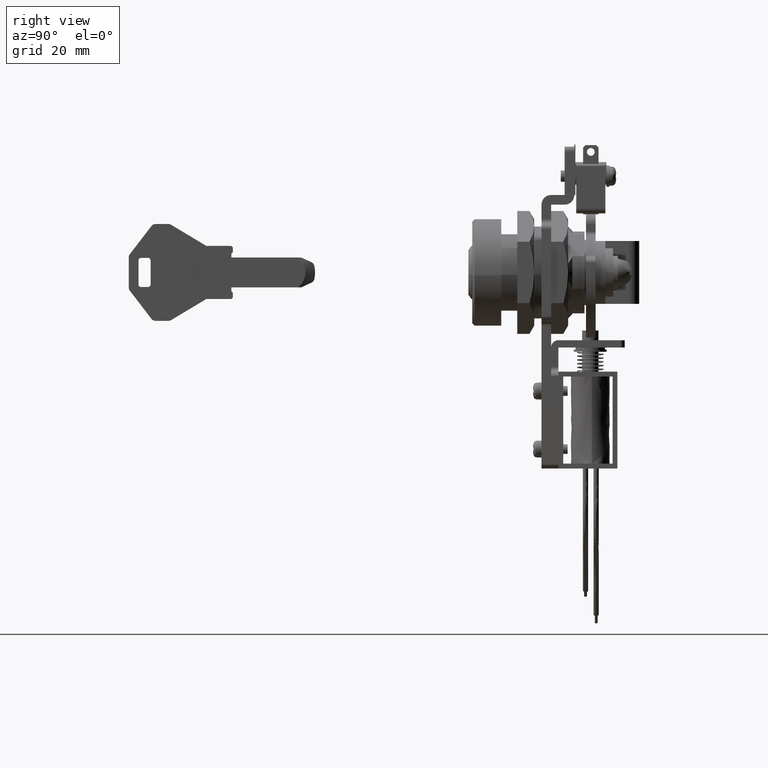
[diagram: clean part render]
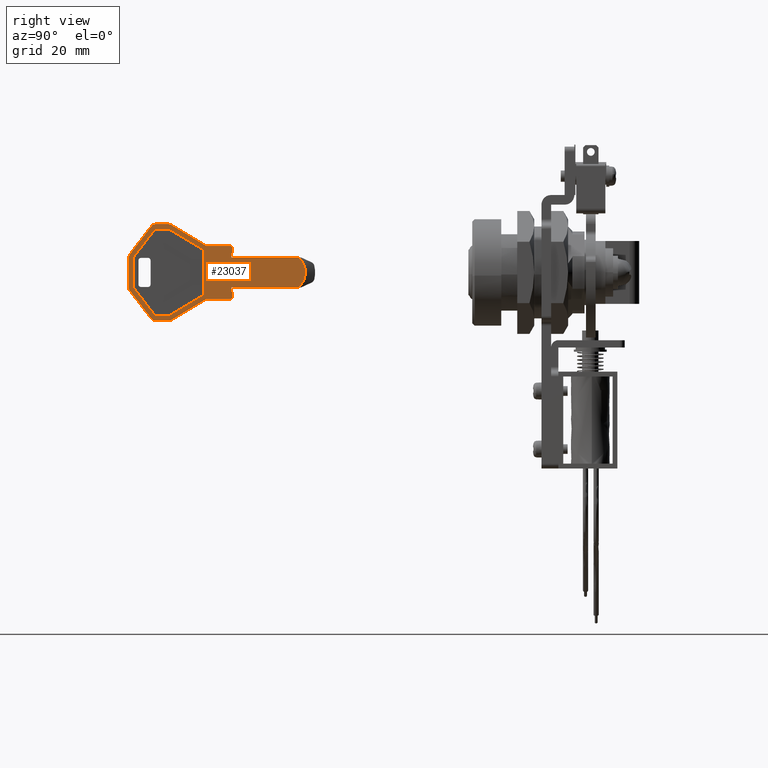
[diagram: same view with one face highlighted and labeled with its STEP entity id]
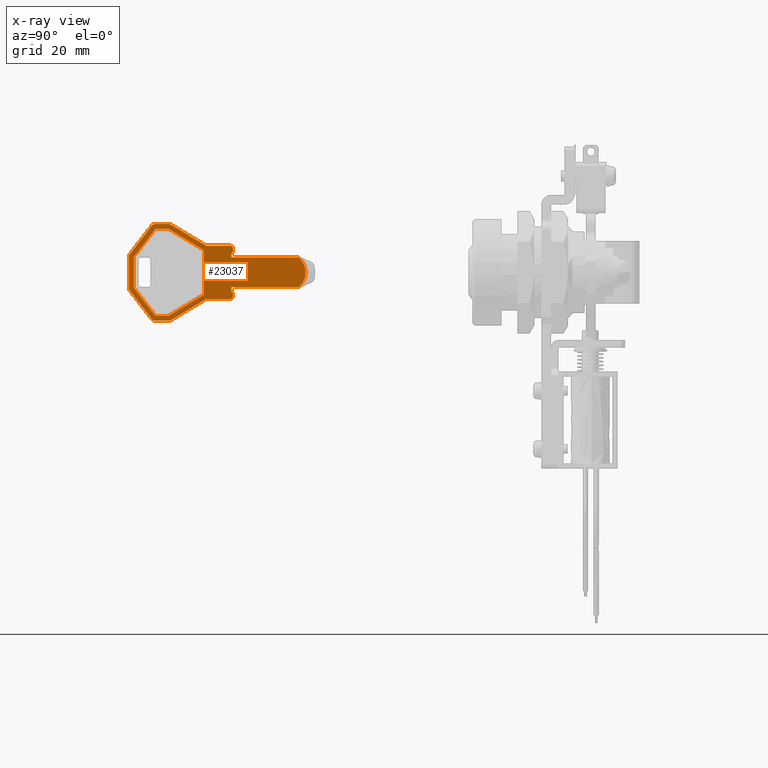
[diagram: x-ray of the same camera — body ghosted, the highlighted face saturated]
A machine part, right view. The second image highlights one B-rep face of the part: STEP entity #23037.
The next image is the same camera in x-ray: the body ghosted, the highlighted face saturated — about 0% of this face is hidden behind the body in this view.
In plain terms, the highlighted face is a freeform B-spline surface patch.
Its self-contained STEP definition (entity closure, byte-faithful):
#21359=CARTESIAN_POINT('',(0.999999999999997,-41.907556421450749,-3.075000000000000));
#21360=VERTEX_POINT('',#21359);
#21361=CARTESIAN_POINT('',(0.999999999999997,-41.907556421450799,3.075000000000000));
#21362=VERTEX_POINT('',#21361);
#21363=CARTESIAN_POINT('',(0.999999999999997,-41.907556421450749,-3.075000000000000));
#21364=CARTESIAN_POINT('',(0.999999999999997,-41.640658157276270,-2.853089562597710));
#21365=CARTESIAN_POINT('',(0.999999999999999,-41.165223107696420,-2.339171550362361));
#21366=CARTESIAN_POINT('',(0.999999999999997,-40.743219284877789,-1.541147408812884));
#21367=CARTESIAN_POINT('',(0.999999999999995,-40.509662142770281,-0.731397208334105));
#21368=CARTESIAN_POINT('',(1.0,-40.439259139995343,0.000336381630140));
#21369=CARTESIAN_POINT('',(0.999999999999997,-40.525786088645567,0.839590551397764));
#21370=CARTESIAN_POINT('',(0.999999999999997,-40.749007772622640,1.540610687106450));
#21371=CARTESIAN_POINT('',(1.000000000000002,-41.182548915155877,2.347068188391224));
#21372=CARTESIAN_POINT('',(0.999999999999992,-41.584355864452967,2.806447511191420));
#21373=CARTESIAN_POINT('',(0.999999999999997,-41.907556421450799,3.075000000000000));
#21374=B_SPLINE_CURVE_WITH_KNOTS('',3,(#21363,#21364,#21365,#21366,#21367,#21368,#21369,#21370,#21371,#21372,#21373),.UNSPECIFIED.,.F.,.U.,(4,1,1,1,1,1,1,1,4),(0.000000161446563,1.041288765809636,2.082622196117910,2.685480498539137,3.562331540361753,4.274821057769501,5.206540346006333,5.754606725633593,7.015129651751256),.UNSPECIFIED.);
#21375=EDGE_CURVE('',#21360,#21362,#21374,.T.);
#21772=CARTESIAN_POINT('',(0.999999999999995,-75.965675337365596,-3.159388051358890));
#21773=VERTEX_POINT('',#21772);
#21774=CARTESIAN_POINT('',(0.999999999999995,-75.965675337365496,3.160388051047220));
#21775=VERTEX_POINT('',#21774);
#21776=CARTESIAN_POINT('',(0.999999999999995,-75.965675337365596,-3.159388051358890));
#21777=CARTESIAN_POINT('',(0.999999999999995,-75.965675337365496,3.160388051047220));
#21778=QUASI_UNIFORM_CURVE('',1,(#21776,#21777),.UNSPECIFIED.,.F.,.U.);
#21779=EDGE_CURVE('',#21773,#21775,#21778,.T.);
#21800=CARTESIAN_POINT('',(0.999999999999996,-71.472804597849205,-9.000000000155888));
#21801=VERTEX_POINT('',#21800);
#21802=CARTESIAN_POINT('',(0.999999999999996,-71.472804597849205,-9.000000000155888));
#21803=CARTESIAN_POINT('',(0.999999999999995,-75.965675337365596,-3.159388051358890));
#21804=QUASI_UNIFORM_CURVE('',1,(#21802,#21803),.UNSPECIFIED.,.F.,.U.);
#21805=EDGE_CURVE('',#21801,#21773,#21804,.T.);
#21822=CARTESIAN_POINT('',(0.999999999999996,-68.743492720541099,-9.000000000155779));
#21823=VERTEX_POINT('',#21822);
#21824=CARTESIAN_POINT('',(0.999999999999996,-68.743492720541099,-9.000000000155779));
#21825=CARTESIAN_POINT('',(0.999999999999996,-71.472804597849205,-9.000000000155888));
#21826=QUASI_UNIFORM_CURVE('',1,(#21824,#21825),.UNSPECIFIED.,.F.,.U.);
#21827=EDGE_CURVE('',#21823,#21801,#21826,.T.);
#21844=CARTESIAN_POINT('',(0.999999999999996,-61.480232891192202,-4.642484154640069));
#21845=VERTEX_POINT('',#21844);
#21846=CARTESIAN_POINT('',(0.999999999999996,-61.480232891192202,-4.642484154640069));
#21847=CARTESIAN_POINT('',(0.999999999999996,-68.743492720541099,-9.000000000155779));
#21848=QUASI_UNIFORM_CURVE('',1,(#21846,#21847),.UNSPECIFIED.,.F.,.U.);
#21849=EDGE_CURVE('',#21845,#21823,#21848,.T.);
#21866=CARTESIAN_POINT('',(0.999999999999996,-61.480214499387003,4.642533119582111));
#21867=VERTEX_POINT('',#21866);
#21868=CARTESIAN_POINT('',(0.999999999999996,-61.480214499387003,4.642533119582111));
#21869=CARTESIAN_POINT('',(0.999999999999996,-61.480232891192202,-4.642484154640069));
#21870=QUASI_UNIFORM_CURVE('',1,(#21868,#21869),.UNSPECIFIED.,.F.,.U.);
#21871=EDGE_CURVE('',#21867,#21845,#21870,.T.);
#21888=CARTESIAN_POINT('',(0.999999999999996,-68.741826068433213,8.999999999844111));
#21889=VERTEX_POINT('',#21888);
#21890=CARTESIAN_POINT('',(0.999999999999996,-68.741826068433213,8.999999999844111));
#21891=CARTESIAN_POINT('',(0.999999999999996,-61.480214499387003,4.642533119582111));
#21892=QUASI_UNIFORM_CURVE('',1,(#21890,#21891),.UNSPECIFIED.,.F.,.U.);
#21893=EDGE_CURVE('',#21889,#21867,#21892,.T.);
#21910=CARTESIAN_POINT('',(0.999999999999996,-71.473573844424592,8.999999999844219));
#21911=VERTEX_POINT('',#21910);
#21912=CARTESIAN_POINT('',(0.999999999999996,-71.473573844424592,8.999999999844219));
#21913=CARTESIAN_POINT('',(0.999999999999996,-68.741826068433213,8.999999999844111));
#21914=QUASI_UNIFORM_CURVE('',1,(#21912,#21913),.UNSPECIFIED.,.F.,.U.);
#21915=EDGE_CURVE('',#21911,#21889,#21914,.T.);
#21932=CARTESIAN_POINT('',(0.999999999999995,-75.965675337365496,3.160388051047220));
#21933=CARTESIAN_POINT('',(0.999999999999996,-71.473573844424592,8.999999999844219));
#21934=QUASI_UNIFORM_CURVE('',1,(#21932,#21933),.UNSPECIFIED.,.F.,.U.);
#21935=EDGE_CURVE('',#21775,#21911,#21934,.T.);
#22204=CARTESIAN_POINT('',(0.999999999999997,-55.765754029142499,3.875000000000115));
#22205=VERTEX_POINT('',#22204);
#22206=CARTESIAN_POINT('',(0.999999999999997,-55.765754029142499,3.075000000000000));
#22207=VERTEX_POINT('',#22206);
#22208=CARTESIAN_POINT('',(0.999999999999997,-55.765754029142499,3.875000000000115));
#22209=CARTESIAN_POINT('',(0.999999999999997,-55.765754029142499,3.075000000000000));
#22210=QUASI_UNIFORM_CURVE('',1,(#22208,#22209),.UNSPECIFIED.,.F.,.U.);
#22211=EDGE_CURVE('',#22205,#22207,#22210,.T.);
#22232=CARTESIAN_POINT('',(0.999999999999997,-55.465754029142602,4.175000000000000));
#22233=VERTEX_POINT('',#22232);
#22234=CARTESIAN_POINT('',(0.999999999999997,-55.465754029142602,4.175000000000000));
#22235=CARTESIAN_POINT('',(0.999999999999997,-55.765754029142499,3.875000000000115));
#22236=QUASI_UNIFORM_CURVE('',1,(#22234,#22235),.UNSPECIFIED.,.F.,.U.);
#22237=EDGE_CURVE('',#22233,#22205,#22236,.T.);
#22254=CARTESIAN_POINT('',(0.999999999999997,-55.465754029142602,5.0));
#22255=VERTEX_POINT('',#22254);
#22256=CARTESIAN_POINT('',(0.999999999999997,-55.465754029142602,5.0));
#22257=CARTESIAN_POINT('',(0.999999999999997,-55.465754029142602,4.175000000000000));
#22258=QUASI_UNIFORM_CURVE('',1,(#22256,#22257),.UNSPECIFIED.,.F.,.U.);
#22259=EDGE_CURVE('',#22255,#22233,#22258,.T.);
#22285=CARTESIAN_POINT('',(0.999999999999997,-55.965754029142602,5.500000000000000));
#22286=VERTEX_POINT('',#22285);
#22287=CARTESIAN_POINT('',(0.999999999999997,-55.465754029142602,5.0));
#22288=CARTESIAN_POINT('',(0.999999999999997,-55.465754029142595,5.500000000000001));
#22289=CARTESIAN_POINT('',(0.999999999999997,-55.965754029142602,5.500000000000000));
#22297=(BOUNDED_CURVE()B_SPLINE_CURVE(2,(#22287,#22288,#22289),.UNSPECIFIED.,.F.,.U.)CURVE()GEOMETRIC_REPRESENTATION_ITEM()QUASI_UNIFORM_CURVE()RATIONAL_B_SPLINE_CURVE((1.0,0.707106781186548,1.0))REPRESENTATION_ITEM(''));
#22298=EDGE_CURVE('',#22255,#22286,#22297,.T.);
#22315=CARTESIAN_POINT('',(0.999999999999996,-60.965754029142701,5.500000000000000));
#22316=VERTEX_POINT('',#22315);
#22317=CARTESIAN_POINT('',(0.999999999999996,-60.965754029142701,5.500000000000000));
#22318=CARTESIAN_POINT('',(0.999999999999997,-55.965754029142602,5.500000000000000));
#22319=QUASI_UNIFORM_CURVE('',1,(#22317,#22318),.UNSPECIFIED.,.F.,.U.);
#22320=EDGE_CURVE('',#22316,#22286,#22319,.T.);
#22337=CARTESIAN_POINT('',(0.999999999999996,-68.228242266711987,9.857492921510731));
#22338=VERTEX_POINT('',#22337);
#22339=CARTESIAN_POINT('',(0.999999999999996,-68.228242266711987,9.857492921510731));
#22340=CARTESIAN_POINT('',(0.999999999999996,-60.965754029142701,5.500000000000000));
#22341=QUASI_UNIFORM_CURVE('',1,(#22339,#22340),.UNSPECIFIED.,.F.,.U.);
#22342=EDGE_CURVE('',#22338,#22316,#22341,.T.);
#22368=CARTESIAN_POINT('',(0.999999999999996,-68.742738029142600,10.0));
#22369=VERTEX_POINT('',#22368);
#22370=CARTESIAN_POINT('',(0.999999999999996,-68.228242266712002,9.857492921510703));
#22371=CARTESIAN_POINT('',(0.999999999999996,-68.465754059797433,9.999999999999998));
#22372=CARTESIAN_POINT('',(0.999999999999996,-68.742738029142600,9.999999999999998));
#22380=(BOUNDED_CURVE()B_SPLINE_CURVE(2,(#22370,#22371,#22372),.UNSPECIFIED.,.F.,.U.)CURVE()GEOMETRIC_REPRESENTATION_ITEM()QUASI_UNIFORM_CURVE()RATIONAL_B_SPLINE_CURVE((1.0,0.963714927120750,1.0))REPRESENTATION_ITEM(''));
#22381=EDGE_CURVE('',#22338,#22369,#22380,.T.);
#22398=CARTESIAN_POINT('',(0.999999999999996,-71.473352454768985,10.0));
#22399=VERTEX_POINT('',#22398);
#22400=CARTESIAN_POINT('',(0.999999999999996,-71.473352454768985,10.0));
#22401=CARTESIAN_POINT('',(0.999999999999996,-68.742738029142600,10.0));
#22402=QUASI_UNIFORM_CURVE('',1,(#22400,#22401),.UNSPECIFIED.,.F.,.U.);
#22403=EDGE_CURVE('',#22399,#22369,#22402,.T.);
#22429=CARTESIAN_POINT('',(0.999999999999996,-72.265976428737503,9.609710780526640));
#22430=VERTEX_POINT('',#22429);
#22431=CARTESIAN_POINT('',(0.999999999999996,-71.473352454768985,9.999999999999998));
#22432=CARTESIAN_POINT('',(0.999999999999996,-71.965753936797455,9.999999999999998));
#22433=CARTESIAN_POINT('',(0.999999999999996,-72.265976428737488,9.609710780526628));
#22441=(BOUNDED_CURVE()B_SPLINE_CURVE(2,(#22431,#22432,#22433),.UNSPECIFIED.,.F.,.U.)CURVE()GEOMETRIC_REPRESENTATION_ITEM()QUASI_UNIFORM_CURVE()RATIONAL_B_SPLINE_CURVE((1.0,0.897137330771223,1.0))REPRESENTATION_ITEM(''));
#22442=EDGE_CURVE('',#22399,#22430,#22441,.T.);
#22459=CARTESIAN_POINT('',(0.999999999999995,-76.758378018553898,3.769588760450915));
#22460=VERTEX_POINT('',#22459);
#22461=CARTESIAN_POINT('',(0.999999999999995,-76.758378018553898,3.769588760450915));
#22462=CARTESIAN_POINT('',(0.999999999999996,-72.265976428737503,9.609710780526640));
#22463=QUASI_UNIFORM_CURVE('',1,(#22461,#22462),.UNSPECIFIED.,.F.,.U.);
#22464=EDGE_CURVE('',#22460,#22430,#22463,.T.);
#22490=CARTESIAN_POINT('',(0.999999999999995,-76.965754029142602,3.159878000000000));
#22491=VERTEX_POINT('',#22490);
#22492=CARTESIAN_POINT('',(0.999999999999995,-76.758378018553941,3.769588760450942));
#22493=CARTESIAN_POINT('',(0.999999999999995,-76.965754029142602,3.499999946405036));
#22494=CARTESIAN_POINT('',(0.999999999999995,-76.965754029142602,3.159878000000000));
#22502=(BOUNDED_CURVE()B_SPLINE_CURVE(2,(#22492,#22493,#22494),.UNSPECIFIED.,.F.,.U.)CURVE()GEOMETRIC_REPRESENTATION_ITEM()QUASI_UNIFORM_CURVE()RATIONAL_B_SPLINE_CURVE((1.0,0.946737553235143,1.0))REPRESENTATION_ITEM(''));
#22503=EDGE_CURVE('',#22460,#22491,#22502,.T.);
#22520=CARTESIAN_POINT('',(0.999999999999995,-76.965754029142602,-3.159878000000000));
#22521=VERTEX_POINT('',#22520);
#22522=CARTESIAN_POINT('',(0.999999999999995,-76.965754029142602,-3.159878000000000));
#22523=CARTESIAN_POINT('',(0.999999999999995,-76.965754029142602,3.159878000000000));
#22524=QUASI_UNIFORM_CURVE('',1,(#22522,#22523),.UNSPECIFIED.,.F.,.U.);
#22525=EDGE_CURVE('',#22521,#22491,#22524,.T.);
#22551=CARTESIAN_POINT('',(0.999999999999995,-76.758378029142605,-3.769589000000000));
#22552=VERTEX_POINT('',#22551);
#22553=CARTESIAN_POINT('',(0.999999999999995,-76.965754029142602,-3.159878000000000));
#22554=CARTESIAN_POINT('',(0.999999999999995,-76.965754029142602,-3.500000048722243));
#22555=CARTESIAN_POINT('',(0.999999999999995,-76.758377906723041,-3.769588905831069));
#22563=(BOUNDED_CURVE()B_SPLINE_CURVE(2,(#22553,#22554,#22555),.UNSPECIFIED.,.F.,.U.)CURVE()GEOMETRIC_REPRESENTATION_ITEM()QUASI_UNIFORM_CURVE()RATIONAL_B_SPLINE_CURVE((1.0,0.946737523704549,1.0))REPRESENTATION_ITEM(''));
#22564=EDGE_CURVE('',#22521,#22552,#22563,.T.);
#22581=CARTESIAN_POINT('',(0.999999999999996,-72.265977018553883,-9.609710760450898));
#22582=VERTEX_POINT('',#22581);
#22583=CARTESIAN_POINT('',(0.999999999999996,-72.265977018553883,-9.609710760450898));
#22584=CARTESIAN_POINT('',(0.999999999999995,-76.758378029142605,-3.769589000000000));
#22585=QUASI_UNIFORM_CURVE('',1,(#22583,#22584),.UNSPECIFIED.,.F.,.U.);
#22586=EDGE_CURVE('',#22582,#22552,#22585,.T.);
#22612=CARTESIAN_POINT('',(0.999999999999996,-71.473353029142501,-10.0));
#22613=VERTEX_POINT('',#22612);
#22614=CARTESIAN_POINT('',(0.999999999999996,-72.265977018553869,-9.609710760450884));
#22615=CARTESIAN_POINT('',(0.999999999999996,-71.965754526905570,-9.999999999999998));
#22616=CARTESIAN_POINT('',(0.999999999999996,-71.473353029142501,-9.999999999999998));
#22624=(BOUNDED_CURVE()B_SPLINE_CURVE(2,(#22614,#22615,#22616),.UNSPECIFIED.,.F.,.U.)CURVE()GEOMETRIC_REPRESENTATION_ITEM()QUASI_UNIFORM_CURVE()RATIONAL_B_SPLINE_CURVE((1.0,0.897137325176833,1.0))REPRESENTATION_ITEM(''));
#22625=EDGE_CURVE('',#22582,#22613,#22624,.T.);
#22642=CARTESIAN_POINT('',(0.999999999999996,-68.742738029142600,-10.0));
#22643=VERTEX_POINT('',#22642);
#22644=CARTESIAN_POINT('',(0.999999999999996,-68.742738029142600,-10.0));
#22645=CARTESIAN_POINT('',(0.999999999999996,-71.473353029142501,-10.0));
#22646=QUASI_UNIFORM_CURVE('',1,(#22644,#22645),.UNSPECIFIED.,.F.,.U.);
#22647=EDGE_CURVE('',#22643,#22613,#22646,.T.);
#22673=CARTESIAN_POINT('',(0.999999999999996,-68.228242029142493,-9.857492999999860));
#22674=VERTEX_POINT('',#22673);
#22675=CARTESIAN_POINT('',(0.999999999999996,-68.742738029142600,-9.999999999999998));
#22676=CARTESIAN_POINT('',(0.999999999999996,-68.465753971866107,-9.999999999999998));
#22677=CARTESIAN_POINT('',(0.999999999999996,-68.228242126656141,-9.857492837477167));
#22685=(BOUNDED_CURVE()B_SPLINE_CURVE(2,(#22675,#22676,#22677),.UNSPECIFIED.,.F.,.U.)CURVE()GEOMETRIC_REPRESENTATION_ITEM()QUASI_UNIFORM_CURVE()RATIONAL_B_SPLINE_CURVE((1.0,0.963714905321373,1.0))REPRESENTATION_ITEM(''));
#22686=EDGE_CURVE('',#22643,#22674,#22685,.T.);
#22703=CARTESIAN_POINT('',(0.999999999999996,-60.965754029142602,-5.500000000000000));
#22704=VERTEX_POINT('',#22703);
#22705=CARTESIAN_POINT('',(0.999999999999996,-60.965754029142602,-5.500000000000000));
#22706=CARTESIAN_POINT('',(0.999999999999996,-68.228242029142493,-9.857492999999860));
#22707=QUASI_UNIFORM_CURVE('',1,(#22705,#22706),.UNSPECIFIED.,.F.,.U.);
#22708=EDGE_CURVE('',#22704,#22674,#22707,.T.);
#22725=CARTESIAN_POINT('',(0.999999999999997,-55.965754029142602,-5.500000000000000));
#22726=VERTEX_POINT('',#22725);
#22727=CARTESIAN_POINT('',(0.999999999999997,-55.965754029142602,-5.500000000000000));
#22728=CARTESIAN_POINT('',(0.999999999999996,-60.965754029142602,-5.500000000000000));
#22729=QUASI_UNIFORM_CURVE('',1,(#22727,#22728),.UNSPECIFIED.,.F.,.U.);
#22730=EDGE_CURVE('',#22726,#22704,#22729,.T.);
#22756=CARTESIAN_POINT('',(0.999999999999997,-55.465754029142602,-5.0));
#22757=VERTEX_POINT('',#22756);
#22758=CARTESIAN_POINT('',(0.999999999999997,-55.965754029142602,-5.500000000000000));
#22759=CARTESIAN_POINT('',(0.999999999999997,-55.465754029142595,-5.500000000000001));
#22760=CARTESIAN_POINT('',(0.999999999999997,-55.465754029142602,-5.0));
#22768=(BOUNDED_CURVE()B_SPLINE_CURVE(2,(#22758,#22759,#22760),.UNSPECIFIED.,.F.,.U.)CURVE()GEOMETRIC_REPRESENTATION_ITEM()QUASI_UNIFORM_CURVE()RATIONAL_B_SPLINE_CURVE((1.0,0.707106781186548,1.0))REPRESENTATION_ITEM(''));
#22769=EDGE_CURVE('',#22726,#22757,#22768,.T.);
#22786=CARTESIAN_POINT('',(0.999999999999997,-55.465754029142602,-4.174999999999870));
#22787=VERTEX_POINT('',#22786);
#22788=CARTESIAN_POINT('',(0.999999999999997,-55.465754029142602,-4.174999999999870));
#22789=CARTESIAN_POINT('',(0.999999999999997,-55.465754029142602,-5.0));
#22790=QUASI_UNIFORM_CURVE('',1,(#22788,#22789),.UNSPECIFIED.,.F.,.U.);
#22791=EDGE_CURVE('',#22787,#22757,#22790,.T.);
#22808=CARTESIAN_POINT('',(0.999999999999997,-55.765754029142499,-3.875000000000000));
#22809=VERTEX_POINT('',#22808);
#22810=CARTESIAN_POINT('',(0.999999999999997,-55.765754029142499,-3.875000000000000));
#22811=CARTESIAN_POINT('',(0.999999999999997,-55.465754029142602,-4.174999999999870));
#22812=QUASI_UNIFORM_CURVE('',1,(#22810,#22811),.UNSPECIFIED.,.F.,.U.);
#22813=EDGE_CURVE('',#22809,#22787,#22812,.T.);
#22830=CARTESIAN_POINT('',(0.999999999999997,-55.765754029142499,-3.075000000000000));
#22831=VERTEX_POINT('',#22830);
#22832=CARTESIAN_POINT('',(0.999999999999997,-55.765754029142499,-3.075000000000000));
#22833=CARTESIAN_POINT('',(0.999999999999997,-55.765754029142499,-3.875000000000000));
#22834=QUASI_UNIFORM_CURVE('',1,(#22832,#22833),.UNSPECIFIED.,.F.,.U.);
#22835=EDGE_CURVE('',#22831,#22809,#22834,.T.);
#22858=CARTESIAN_POINT('',(0.999999999999997,-41.907556421450749,-3.075000000000000));
#22859=CARTESIAN_POINT('',(0.999999999999997,-55.765754029142499,-3.075000000000000));
#22860=QUASI_UNIFORM_CURVE('',1,(#22858,#22859),.UNSPECIFIED.,.F.,.U.);
#22861=EDGE_CURVE('',#21360,#22831,#22860,.T.);
#22981=CARTESIAN_POINT('',(0.999999999999997,-55.765754029142499,3.075000000000000));
#22982=CARTESIAN_POINT('',(0.999999999999997,-41.907556421450799,3.075000000000000));
#22983=QUASI_UNIFORM_CURVE('',1,(#22981,#22982),.UNSPECIFIED.,.F.,.U.);
#22984=EDGE_CURVE('',#22207,#21362,#22983,.T.);
#22994=CARTESIAN_POINT('',(0.999999999999995,-78.788928958398515,10.998999961236120));
#22995=CARTESIAN_POINT('',(0.999999999999998,-38.642578120880387,10.998999961236120));
#22996=CARTESIAN_POINT('',(0.999999999999995,-78.788928958398515,-10.999000497677921));
#22997=CARTESIAN_POINT('',(0.999999999999998,-38.642578120880387,-10.999000497677921));
#22998=B_SPLINE_SURFACE_WITH_KNOTS('',1,1,((#22994,#22996),(#22995,#22997)),.UNSPECIFIED.,.F.,.F.,.U.,(2,2),(2,2),(0.0,40.146350837518128),(0.0,21.998000458914039),.UNSPECIFIED.);
#22999=ORIENTED_EDGE('',*,*,#21375,.T.);
#23000=ORIENTED_EDGE('',*,*,#22984,.F.);
#23001=ORIENTED_EDGE('',*,*,#22211,.F.);
#23002=ORIENTED_EDGE('',*,*,#22237,.F.);
#23003=ORIENTED_EDGE('',*,*,#22259,.F.);
#23004=ORIENTED_EDGE('',*,*,#22298,.T.);
#23005=ORIENTED_EDGE('',*,*,#22320,.F.);
#23006=ORIENTED_EDGE('',*,*,#22342,.F.);
#23007=ORIENTED_EDGE('',*,*,#22381,.T.);
#23008=ORIENTED_EDGE('',*,*,#22403,.F.);
#23009=ORIENTED_EDGE('',*,*,#22442,.T.);
#23010=ORIENTED_EDGE('',*,*,#22464,.F.);
#23011=ORIENTED_EDGE('',*,*,#22503,.T.);
#23012=ORIENTED_EDGE('',*,*,#22525,.F.);
#23013=ORIENTED_EDGE('',*,*,#22564,.T.);
#23014=ORIENTED_EDGE('',*,*,#22586,.F.);
#23015=ORIENTED_EDGE('',*,*,#22625,.T.);
#23016=ORIENTED_EDGE('',*,*,#22647,.F.);
#23017=ORIENTED_EDGE('',*,*,#22686,.T.);
#23018=ORIENTED_EDGE('',*,*,#22708,.F.);
#23019=ORIENTED_EDGE('',*,*,#22730,.F.);
#23020=ORIENTED_EDGE('',*,*,#22769,.T.);
#23021=ORIENTED_EDGE('',*,*,#22791,.F.);
#23022=ORIENTED_EDGE('',*,*,#22813,.F.);
#23023=ORIENTED_EDGE('',*,*,#22835,.F.);
#23024=ORIENTED_EDGE('',*,*,#22861,.F.);
#23025=EDGE_LOOP('',(#22999,#23000,#23001,#23002,#23003,#23004,#23005,#23006,#23007,#23008,#23009,#23010,#23011,#23012,#23013,#23014,#23015,#23016,#23017,#23018,#23019,#23020,#23021,#23022,#23023,#23024));
#23026=FACE_OUTER_BOUND('',#23025,.T.);
#23027=ORIENTED_EDGE('',*,*,#21779,.T.);
#23028=ORIENTED_EDGE('',*,*,#21935,.T.);
#23029=ORIENTED_EDGE('',*,*,#21915,.T.);
#23030=ORIENTED_EDGE('',*,*,#21893,.T.);
#23031=ORIENTED_EDGE('',*,*,#21871,.T.);
#23032=ORIENTED_EDGE('',*,*,#21849,.T.);
#23033=ORIENTED_EDGE('',*,*,#21827,.T.);
#23034=ORIENTED_EDGE('',*,*,#21805,.T.);
#23035=EDGE_LOOP('',(#23027,#23028,#23029,#23030,#23031,#23032,#23033,#23034));
#23036=FACE_BOUND('',#23035,.T.);
#23037=ADVANCED_FACE('',(#23026,#23036),#22998,.F.);